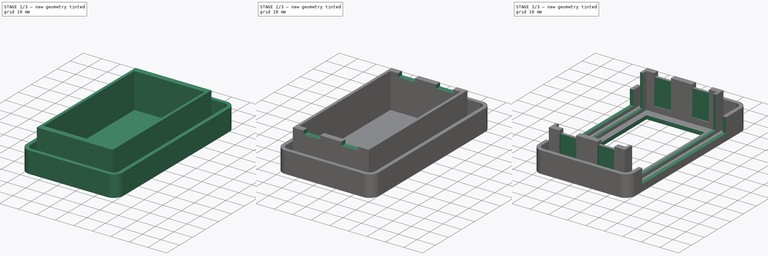
[diagram: build sequence overview — one tinted view per stage of 3, left to right]
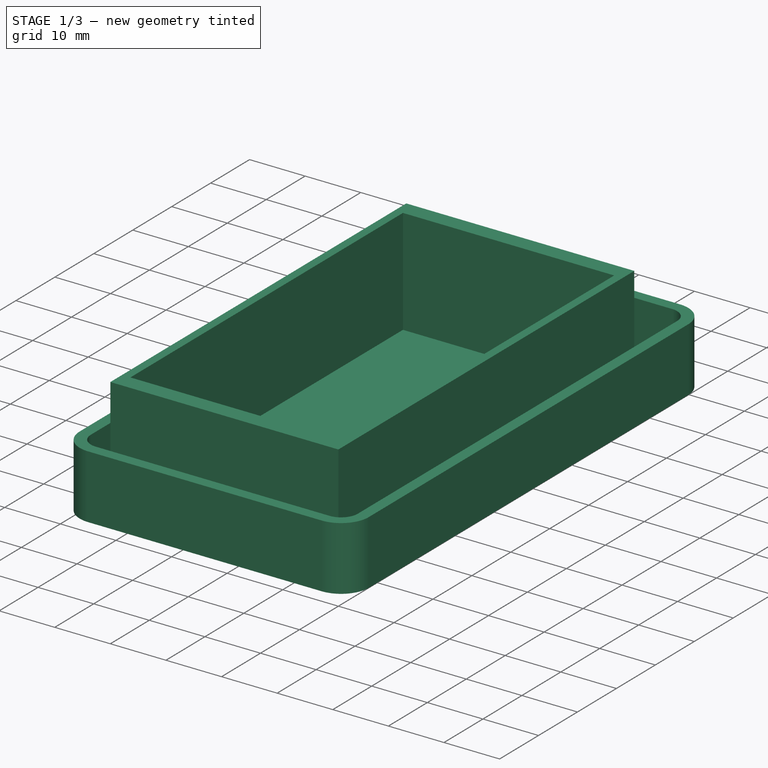
[diagram: stage 1 of 3 — iso view after this stage's code; geometry added in this stage tinted green]
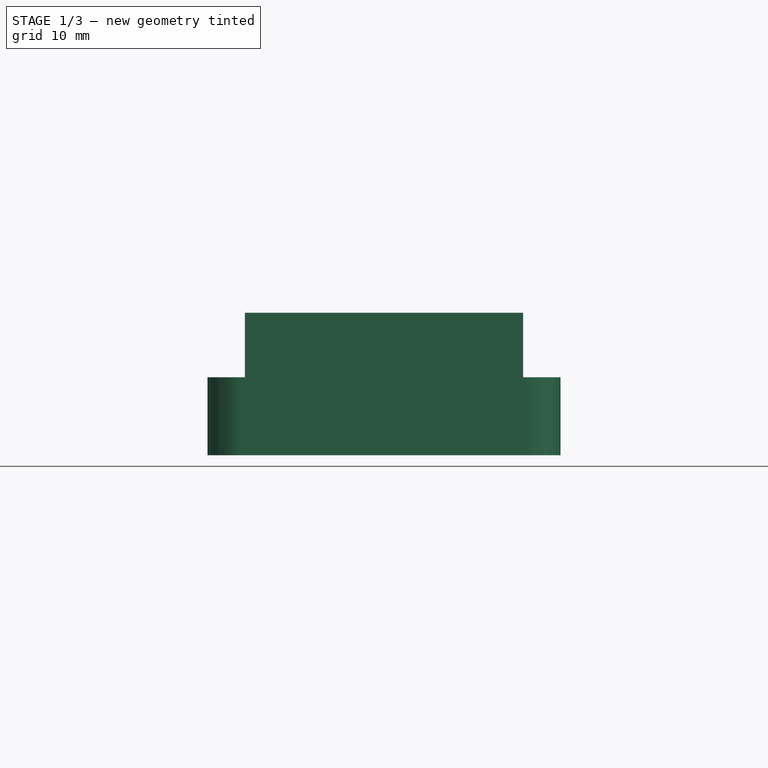
[diagram: stage 1 of 3 — front view after this stage's code; geometry added in this stage tinted green]
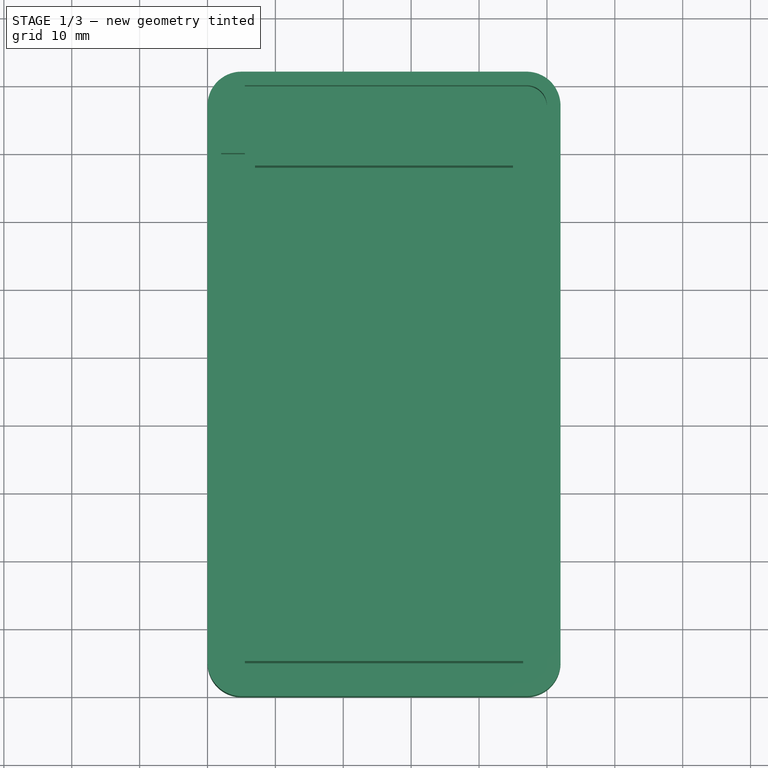
[diagram: stage 1 of 3 — top view after this stage's code; geometry added in this stage tinted green]
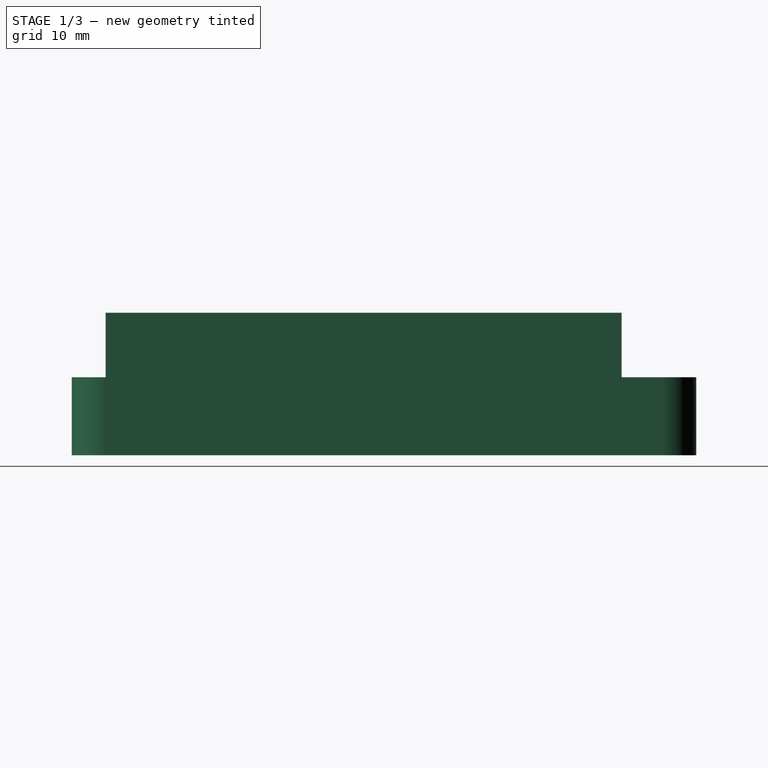
[diagram: stage 1 of 3 — right view after this stage's code; geometry added in this stage tinted green]
FCSTD DOCUMENT
Label: 18650USBCharger
objects: Sketcher::SketchObject×8, PartDesign::Pocket×6, PartDesign::Pad×2
note: 18 computed .brp shape members not serialized (recipe doc carries the construction recipe); baked Part::Feature solids carry a one-line shape summary decoded from their .brp

FEATURE [Sketcher::SketchObject] Sketch
  sketch-geometry (16):
    g0: LineSegment StartX=0 StartY=5 StartZ=0 EndX=0 EndY=87 EndZ=0
    g1: LineSegment [constr] StartX=0 StartY=87 StartZ=0 EndX=5 EndY=87 EndZ=0
    g2: LineSegment [constr] StartX=5 StartY=87 StartZ=0 EndX=5 EndY=92 EndZ=0
    g3: LineSegment StartX=5 StartY=92 StartZ=0 EndX=47 EndY=92 EndZ=0
    g4: LineSegment [constr] StartX=47 StartY=92 StartZ=0 EndX=47 EndY=87 EndZ=0
    g5: LineSegment [constr] StartX=47 StartY=87 StartZ=0 EndX=52 EndY=87 EndZ=0
    g6: LineSegment StartX=52 StartY=87 StartZ=0 EndX=52 EndY=5 EndZ=0
    g7: LineSegment [constr] StartX=52 StartY=5 StartZ=0 EndX=47 EndY=5 EndZ=0
    g8: LineSegment [constr] StartX=47 StartY=5 StartZ=0 EndX=47 EndY=0 EndZ=0
    g9: LineSegment StartX=47 StartY=0 StartZ=0 EndX=5 EndY=0 EndZ=0
    g10: LineSegment [constr] StartX=5 StartY=0 StartZ=0 EndX=5 EndY=5 EndZ=0
    g11: LineSegment [constr] StartX=5 StartY=5 StartZ=0 EndX=0 EndY=5 EndZ=0
    g12: ArcOfCircle CenterX=5 CenterY=87 CenterZ=0 NormalX=0 NormalY=0 NormalZ=1 Radius=5 StartAngle=1.5708 EndAngle=3.14159
    g13: ArcOfCircle CenterX=47 CenterY=87 CenterZ=0 NormalX=0 NormalY=0 NormalZ=1 Radius=5 StartAngle=0 EndAngle=1.5708
    g14: ArcOfCircle CenterX=5 CenterY=5 CenterZ=0 NormalX=0 NormalY=0 NormalZ=1 Radius=5 StartAngle=3.14159 EndAngle=4.71239
    g15: ArcOfCircle CenterX=47 CenterY=5 CenterZ=0 NormalX=0 NormalY=0 NormalZ=1 Radius=5 StartAngle=4.71239 EndAngle=6.28319
  constraints (44):
    c: Vertical(g0)
    c: Coincident(g0,g1)
    c: Horizontal(g1)
    c: Coincident(g1,g2)
    c: Vertical(g2)
    c: Coincident(g2,g3)
    c: Horizontal(g3)
    c: Coincident(g3,g4)
    c: Vertical(g4)
    c: Coincident(g4,g5)
    c: Horizontal(g5)
    c: Coincident(g5,g6)
    c: Vertical(g6)
    c: Coincident(g6,g7)
    c: Horizontal(g7)
    c: Coincident(g7,g8)
    c: Vertical(g8)
    c: Coincident(g8,g9)
    c: Horizontal(g9)
    c: Coincident(g9,g10)
    c: Vertical(g10)
    c: Coincident(g10,g11)
    c: Coincident(g11,g0)
    c: Horizontal(g11)
    c: Coincident(g12,g1)
    c: Coincident(g12,g0)
    c: Coincident(g12,g2)
    c: Coincident(g13,g4)
    c: Coincident(g13,g3)
    c: Coincident(g13,g5)
    c: Coincident(g14,g10)
    c: Coincident(g14,g9)
    c: Coincident(g14,g0)
    c: Coincident(g15,g7)
    c: Coincident(g15,g8)
    c: Coincident(g15,g6)
    c: Equal(g12,g14)
    c: Equal(g14,g15)
    c: Equal(g15,g13)
    c: Radius(g13) = 5
    c: DistanceX(g0) = 0
    c: DistanceY(g9) = 0
    c: DistanceY(g3,g8) = -92
    c: DistanceX(g0,g5) = 52
FEATURE [PartDesign::Pad] Pad
  Length = 11.5
  MirroredExtent = false
  Sketch = -> Sketch
FEATURE [Sketcher::SketchObject] Sketch001
  Placement = pos=(0,0,11.5) rot=(0,0,1;0rad)
  Support = -> Pad [Face10]
  sketch-geometry (15):
    g0: LineSegment StartX=2 StartY=5 StartZ=0 EndX=2 EndY=80 EndZ=0
    g1: LineSegment StartX=5.5 StartY=90 StartZ=0 EndX=47 EndY=90 EndZ=0
    g2: LineSegment [constr] StartX=47 StartY=90 StartZ=0 EndX=47 EndY=87 EndZ=0
    g3: LineSegment [constr] StartX=47 StartY=87 StartZ=0 EndX=50 EndY=87 EndZ=0
    g4: LineSegment StartX=50 StartY=87 StartZ=0 EndX=50 EndY=5 EndZ=0
    g5: LineSegment [constr] StartX=50 StartY=5 StartZ=0 EndX=47 EndY=5 EndZ=0
    g6: LineSegment [constr] StartX=47 StartY=5 StartZ=0 EndX=47 EndY=2 EndZ=0
    g7: LineSegment StartX=47 StartY=2 StartZ=0 EndX=5 EndY=2 EndZ=0
    g8: LineSegment [constr] StartX=5 StartY=2 StartZ=0 EndX=5 EndY=5 EndZ=0
    g9: LineSegment [constr] StartX=5 StartY=5 StartZ=0 EndX=2 EndY=5 EndZ=0
    g10: ArcOfCircle CenterX=47 CenterY=87 CenterZ=0 NormalX=0 NormalY=0 NormalZ=1 Radius=3 StartAngle=0 EndAngle=1.5708
    g11: ArcOfCircle CenterX=5 CenterY=5 CenterZ=0 NormalX=0 NormalY=0 NormalZ=1 Radius=3 StartAngle=3.14159 EndAngle=4.71239
    g12: ArcOfCircle CenterX=47 CenterY=5 CenterZ=0 NormalX=0 NormalY=0 NormalZ=1 Radius=3 StartAngle=4.71239 EndAngle=6.28319
    g13: LineSegment StartX=2 StartY=80 StartZ=0 EndX=5.5 EndY=80 EndZ=0
    g14: LineSegment StartX=5.5 StartY=80 StartZ=0 EndX=5.5 EndY=90 EndZ=0
  constraints (42):
    c: Vertical(g0)
    c: Horizontal(g1)
    c: Coincident(g1,g2)
    c: Vertical(g2)
    c: Coincident(g2,g3)
    c: Horizontal(g3)
    c: Coincident(g3,g4)
    c: Vertical(g4)
    c: Coincident(g4,g5)
    c: Horizontal(g5)
    c: Coincident(g5,g6)
    c: Vertical(g6)
    c: Coincident(g6,g7)
    c: Horizontal(g7)
    c: Coincident(g7,g8)
    c: Vertical(g8)
    c: Coincident(g8,g9)
    c: Coincident(g9,g0)
    c: Horizontal(g9)
    c: Coincident(g10,g2)
    c: Coincident(g10,g1)
    c: Coincident(g10,g3)
    c: Coincident(g11,g8)
    c: Coincident(g11,g7)
    c: Coincident(g11,g0)
    c: Coincident(g12,g5)
    c: Coincident(g12,g6)
    c: Coincident(g12,g4)
    c: Equal(g11,g12)
    c: Equal(g12,g10)
    c: Radius(g10) = 3
    c: DistanceX(g0) = 2
    c: DistanceY(g7) = 2
    c: DistanceY(g1,g6) = -88
    c: DistanceX(g0,g3) = 48
    c: Coincident(g13,g0)
    c: Horizontal(g13)
    c: Coincident(g13,g14)
    c: Coincident(g14,g1)
    c: Vertical(g14)
    c: DistanceX(g13) = 5.5
    c: DistanceY(g14) = 10
FEATURE [PartDesign::Pocket] Pocket
  Length = 9.5
  Sketch = -> Sketch001
  Type = 0
FEATURE [Sketcher::SketchObject] Sketch002
  Placement = pos=(0,0,2) rot=(0,0,1;0rad)
  Support = -> Pocket [Face20]
  sketch-geometry (13):
    g0: LineSegment StartX=7 StartY=78 StartZ=0 EndX=45 EndY=78 EndZ=0
    g1: LineSegment StartX=45 StartY=78 StartZ=0 EndX=45 EndY=8 EndZ=0
    g2: LineSegment StartX=7 StartY=8 StartZ=0 EndX=7 EndY=78 EndZ=0
    g3: LineSegment StartX=7 StartY=8 StartZ=0 EndX=26 EndY=8 EndZ=0
    g4: LineSegment StartX=26 StartY=8 StartZ=0 EndX=45 EndY=8 EndZ=0
    g5: LineSegment StartX=5.5 StartY=5 StartZ=0 EndX=26 EndY=5 EndZ=0
    g6: LineSegment StartX=26 StartY=5 StartZ=0 EndX=46.5 EndY=5 EndZ=0
    g7: LineSegment StartX=5.5 StartY=5 StartZ=0 EndX=5.5 EndY=81 EndZ=0
    g8: LineSegment StartX=5.5 StartY=81 StartZ=0 EndX=46.5 EndY=81 EndZ=0
    g9: LineSegment StartX=46.5 StartY=81 StartZ=0 EndX=46.5 EndY=5 EndZ=0
    g10: LineSegment [constr] StartX=26 StartY=5 StartZ=0 EndX=26 EndY=8 EndZ=0
    g11: LineSegment [constr] StartX=7 StartY=78 StartZ=0 EndX=5.5 EndY=78 EndZ=0
    g12: LineSegment [constr] StartX=45 StartY=78 StartZ=0 EndX=46.5 EndY=78 EndZ=0
  constraints (38):
    c: Coincident(g0,g1)
    c: Coincident(g2,g0)
    c: Horizontal(g0)
    c: Vertical(g1)
    c: Vertical(g2)
    c: DistanceY(g1) = -70
    c: Coincident(g3,g2)
    c: Horizontal(g3)
    c: Coincident(g3,g4)
    c: Coincident(g4,g1)
    c: Horizontal(g4)
    c: Equal(g4,g3)
    c: DistanceX(g3) = 26
    c: DistanceX(g2,g1) = 38
    c: DistanceY(g2) = 8
    c: Horizontal(g5)
    c: Coincident(g5,g6)
    c: Horizontal(g6)
    c: Coincident(g7,g5)
    c: Vertical(g7)
    c: Coincident(g7,g8)
    c: Horizontal(g8)
    c: Coincident(g8,g9)
    c: Coincident(g9,g6)
    c: Vertical(g9)
    c: Equal(g6,g5)
    c: DistanceY(g0,g7) = 3
    c: DistanceX(g0,g7) = -1.5
    c: Coincident(g10,g5)
    c: Coincident(g10,g3)
    c: Vertical(g10)
    c: Coincident(g11,g0)
    c: PointOnObject(g11,g7)
    c: Horizontal(g11)
    c: Coincident(g12,g0)
    c: PointOnObject(g12,g9)
    c: Horizontal(g12)
    c: DistanceY(g2,g5) = -3
FEATURE [PartDesign::Pad] Pad001
  Length = 19
  MirroredExtent = false
  Sketch = -> Sketch002
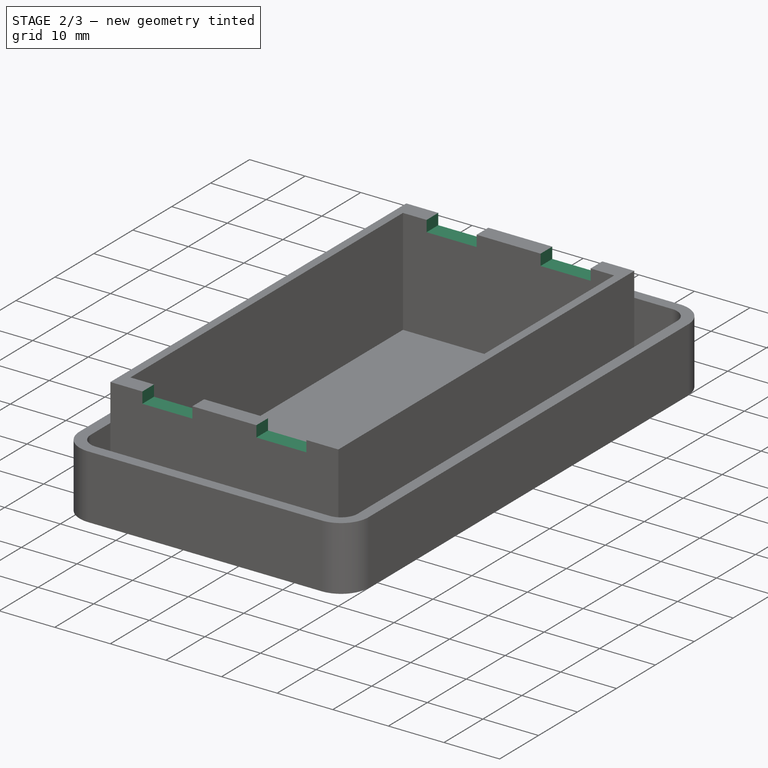
[diagram: stage 2 of 3 — iso view after this stage's code; geometry added in this stage tinted green]
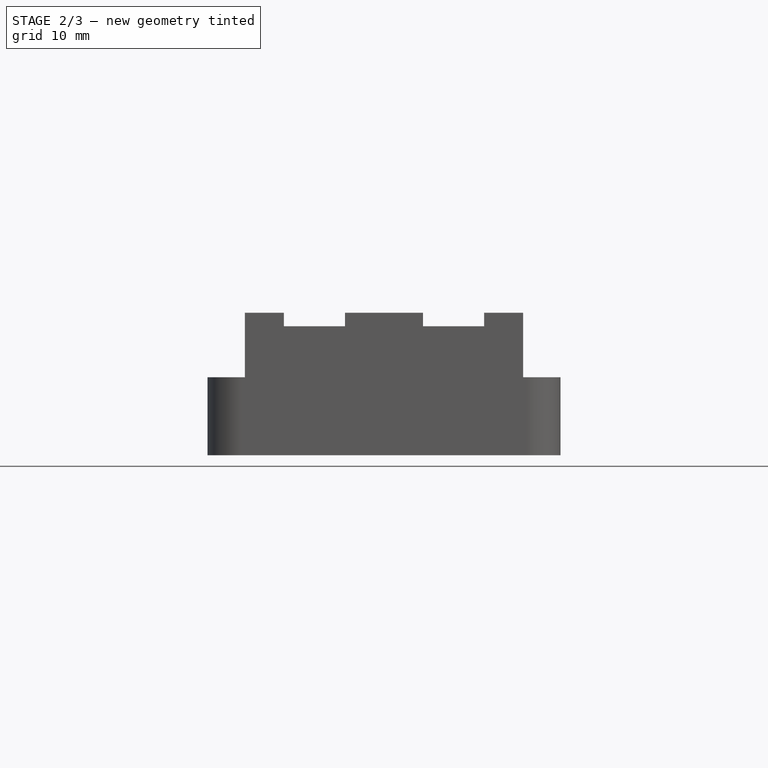
[diagram: stage 2 of 3 — front view after this stage's code; geometry added in this stage tinted green]
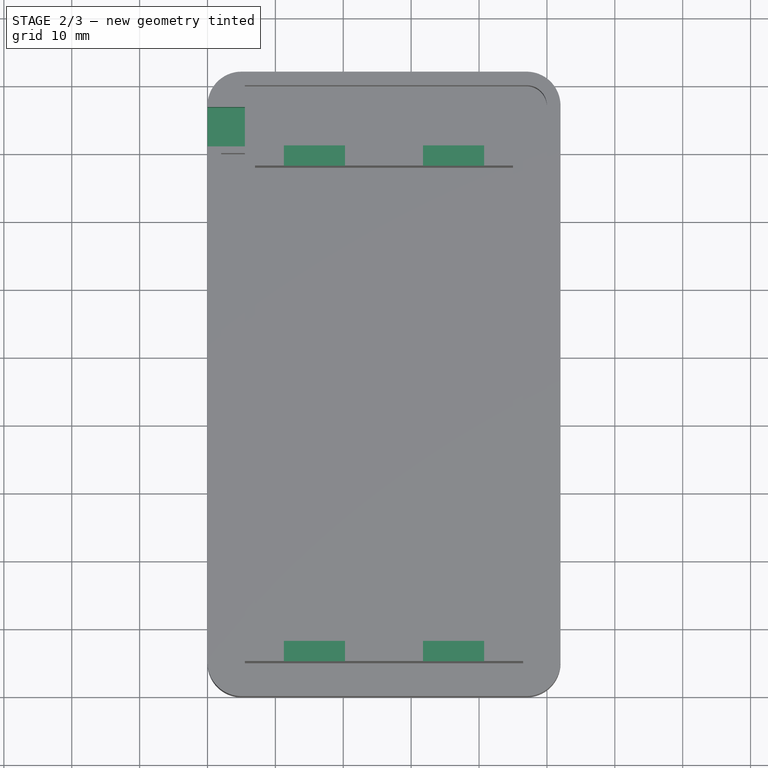
[diagram: stage 2 of 3 — top view after this stage's code; geometry added in this stage tinted green]
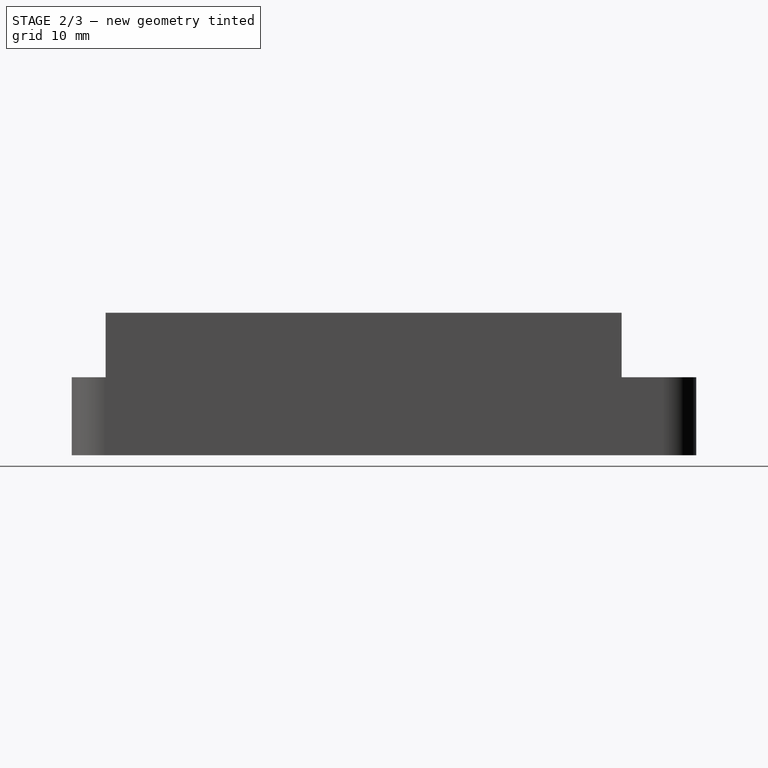
[diagram: stage 2 of 3 — right view after this stage's code; geometry added in this stage tinted green]
FEATURE [Sketcher::SketchObject] Sketch003
  Placement = pos=(0,0,0) rot=(0.57735,-0.57735,-0.57735;2.0944rad)
  Support = -> Pad001 [Face7]
  sketch-geometry (4):
    g0: LineSegment StartX=-81 StartY=4.8 StartZ=0 EndX=-86.8 EndY=4.8 EndZ=0
    g1: LineSegment StartX=-86.8 StartY=4.8 StartZ=0 EndX=-86.8 EndY=11.5 EndZ=0
    g2: LineSegment StartX=-86.8 StartY=11.5 StartZ=0 EndX=-81 EndY=11.5 EndZ=0
    g3: LineSegment StartX=-81 StartY=11.5 StartZ=0 EndX=-81 EndY=4.8 EndZ=0
  constraints (12):
    c: Coincident(g0,g1)
    c: Coincident(g1,g2)
    c: Coincident(g2,g3)
    c: Coincident(g3,g0)
    c: Horizontal(g0)
    c: Horizontal(g2)
    c: Vertical(g1)
    c: Vertical(g3)
    c: DistanceX(g0) = -5.8
    c: DistanceY(g3) = -6.7
    c: DistanceY(g2) = 11.5
    c: DistanceX(g0) = -81
FEATURE [PartDesign::Pocket] Pocket001
  Length = 6
  Sketch = -> Sketch003
  Type = 0
FEATURE [Sketcher::SketchObject] Sketch004
  Placement = pos=(0,0,21) rot=(0,0,1;0rad)
  Support = -> Pocket001 [Face26]
  sketch-geometry (13):
    g0: LineSegment StartX=11.25 StartY=81 StartZ=0 EndX=20.25 EndY=81 EndZ=0
    g1: LineSegment StartX=20.25 StartY=81 StartZ=0 EndX=20.25 EndY=5 EndZ=0
    g2: LineSegment StartX=20.25 StartY=5 StartZ=0 EndX=11.25 EndY=5 EndZ=0
    g3: LineSegment StartX=11.25 StartY=5 StartZ=0 EndX=11.25 EndY=81 EndZ=0
    g4: LineSegment StartX=31.75 StartY=81 StartZ=0 EndX=40.75 EndY=81 EndZ=0
    g5: LineSegment StartX=40.75 StartY=81 StartZ=0 EndX=40.75 EndY=5 EndZ=0
    g6: LineSegment StartX=40.75 StartY=5 StartZ=0 EndX=31.75 EndY=5 EndZ=0
    g7: LineSegment StartX=31.75 StartY=5 StartZ=0 EndX=31.75 EndY=81 EndZ=0
    g8: LineSegment [constr] StartX=20.25 StartY=81 StartZ=0 EndX=31.75 EndY=81 EndZ=0
    g9: LineSegment [constr] StartX=20.25 StartY=5 StartZ=0 EndX=26 EndY=5 EndZ=0
    g10: LineSegment [constr] StartX=26 StartY=5 StartZ=0 EndX=31.75 EndY=5 EndZ=0
    g11: LineSegment [constr] StartX=11.25 StartY=5 StartZ=0 EndX=5.5 EndY=5 EndZ=0
    g12: LineSegment [constr] StartX=40.75 StartY=5 StartZ=0 EndX=46.5 EndY=5 EndZ=0
  constraints (37):
    c: Coincident(g0,g1)
    c: Coincident(g1,g2)
    c: Coincident(g2,g3)
    c: Coincident(g3,g0)
    c: Horizontal(g0)
    c: Horizontal(g2)
    c: Vertical(g1)
    c: Vertical(g3)
    c: Coincident(g4,g5)
    c: Coincident(g5,g6)
    c: Coincident(g6,g7)
    c: Coincident(g7,g4)
    c: Horizontal(g4)
    c: Horizontal(g6)
    c: Vertical(g5)
    c: Vertical(g7)
    c: Coincident(g8,g0)
    c: Coincident(g8,g4)
    c: Horizontal(g8)
    c: Equal(g0,g4)
    c: DistanceY(g5) = -76
    c: Coincident(g9,g1)
    c: Horizontal(g9)
    c: Coincident(g9,g10)
    c: Coincident(g10,g6)
    c: Horizontal(g10)
    c: Equal(g10,g9)
    c: DistanceX(g9) = 26
    c: Coincident(g11,g2)
    c: Horizontal(g11)
    c: Coincident(g12,g5)
    c: Horizontal(g12)
    c: Equal(g11,g12)
    c: Equal(g10,g12)
    c: DistanceX(g11,g12) = 41
    c: DistanceY(g11) = 5
    c: DistanceX(g2) = -9
FEATURE [PartDesign::Pocket] Pocket002
  Length = 2
  Sketch = -> Sketch004
  Type = 0
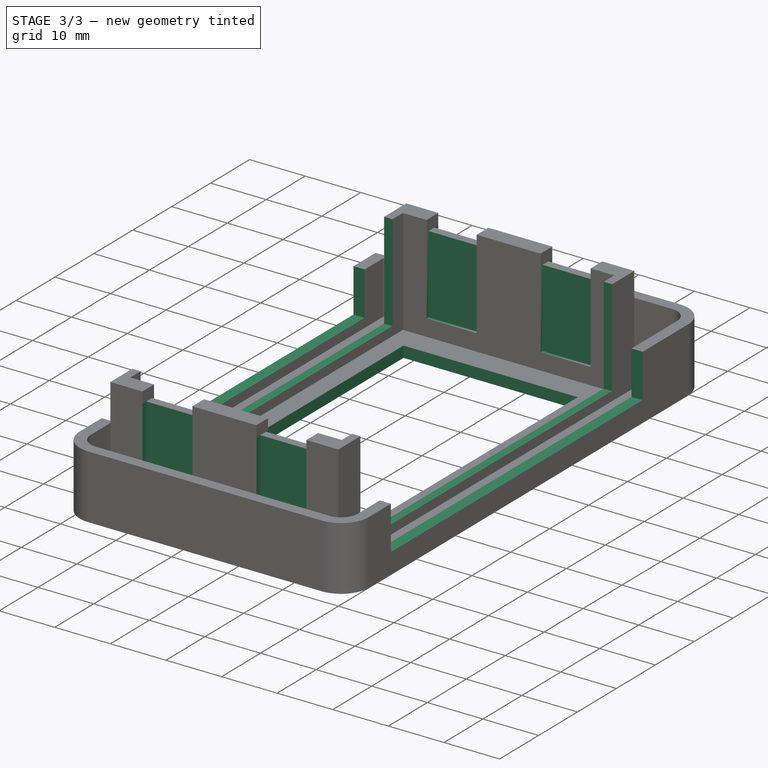
[diagram: stage 3 of 3 — iso view after this stage's code; geometry added in this stage tinted green]
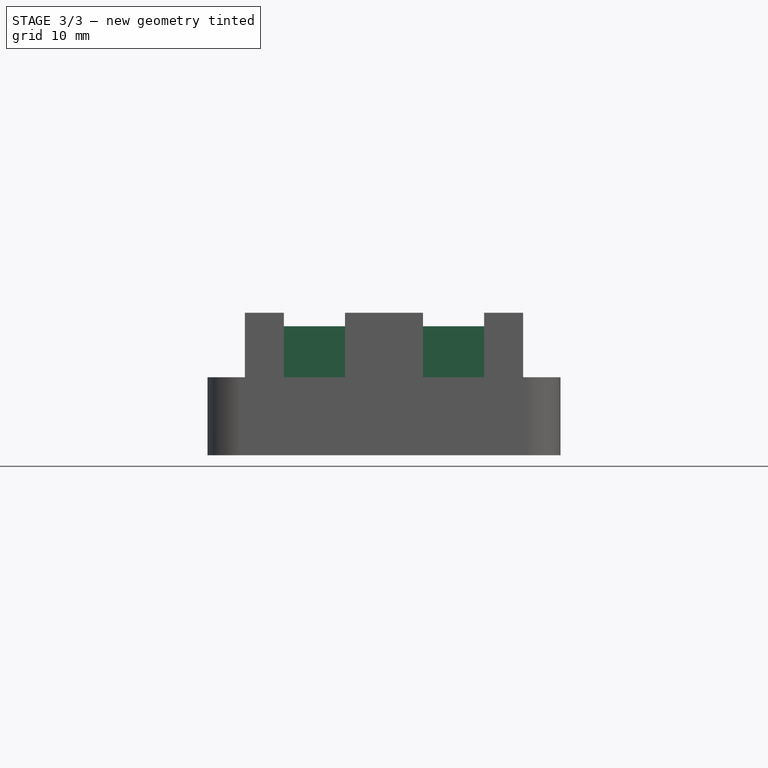
[diagram: stage 3 of 3 — front view after this stage's code; geometry added in this stage tinted green]
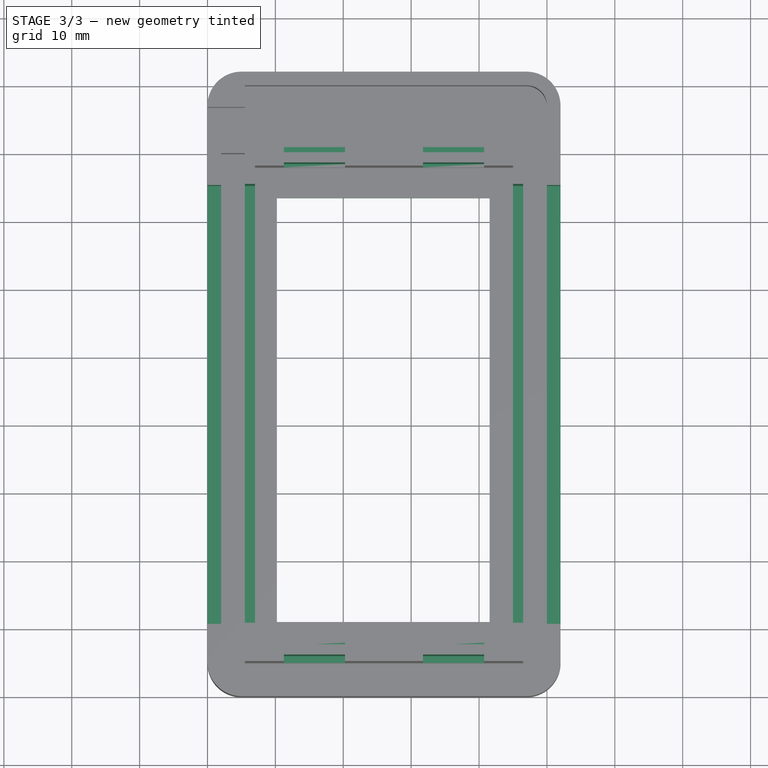
[diagram: stage 3 of 3 — top view after this stage's code; geometry added in this stage tinted green]
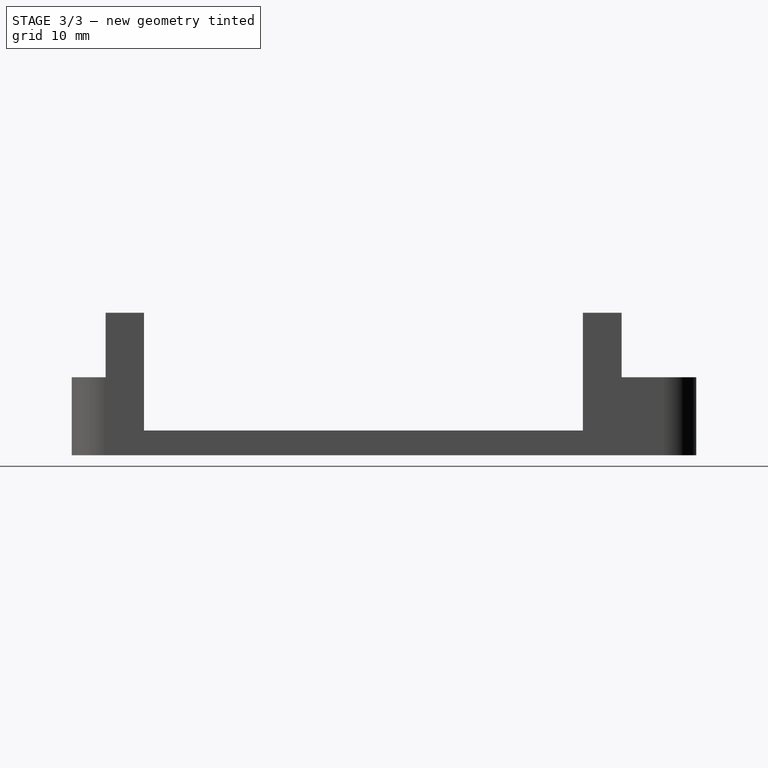
[diagram: stage 3 of 3 — right view after this stage's code; geometry added in this stage tinted green]
FEATURE [Sketcher::SketchObject] Sketch005
  Placement = pos=(0,0,19) rot=(0,0,1;0rad)
  Support = -> Pocket002 [Face41]
  sketch-geometry (41):
    g0: LineSegment StartX=11.25 StartY=78.5 StartZ=0 EndX=20.25 EndY=78.5 EndZ=0
    g1: LineSegment StartX=20.25 StartY=78.5 StartZ=0 EndX=20.25 EndY=7.5 EndZ=0
    g2: LineSegment StartX=20.25 StartY=7.5 StartZ=0 EndX=11.25 EndY=7.5 EndZ=0
    g3: LineSegment StartX=11.25 StartY=7.5 StartZ=0 EndX=11.25 EndY=78.5 EndZ=0
    g4: LineSegment StartX=31.75 StartY=78.5 StartZ=0 EndX=40.75 EndY=78.5 EndZ=0
    g5: LineSegment StartX=40.75 StartY=78.5 StartZ=0 EndX=40.75 EndY=7.5 EndZ=0
    g6: LineSegment StartX=40.75 StartY=7.5 StartZ=0 EndX=31.75 EndY=7.5 EndZ=0
    g7: LineSegment StartX=31.75 StartY=7.5 StartZ=0 EndX=31.75 EndY=78.5 EndZ=0
    g8: LineSegment StartX=11.25 StartY=80 StartZ=0 EndX=20.25 EndY=80 EndZ=0
    g9: LineSegment StartX=20.25 StartY=80 StartZ=0 EndX=20.25 EndY=81 EndZ=0
    g10: LineSegment StartX=20.25 StartY=81 StartZ=0 EndX=11.25 EndY=81 EndZ=0
    g11: LineSegment StartX=11.25 StartY=81 StartZ=0 EndX=11.25 EndY=80 EndZ=0
    g12: LineSegment StartX=31.75 StartY=80 StartZ=0 EndX=40.75 EndY=80 EndZ=0
    g13: LineSegment StartX=40.75 StartY=80 StartZ=0 EndX=40.75 EndY=81 EndZ=0
    g14: LineSegment StartX=40.75 StartY=81 StartZ=0 EndX=31.75 EndY=81 EndZ=0
    g15: LineSegment StartX=31.75 StartY=81 StartZ=0 EndX=31.75 EndY=80 EndZ=0
    g16: LineSegment StartX=11.25 StartY=6 StartZ=0 EndX=20.25 EndY=6 EndZ=0
    g17: LineSegment StartX=20.25 StartY=6 StartZ=0 EndX=20.25 EndY=5 EndZ=0
    g18: LineSegment StartX=20.25 StartY=5 StartZ=0 EndX=11.25 EndY=5 EndZ=0
    g19: LineSegment StartX=11.25 StartY=5 StartZ=0 EndX=11.25 EndY=6 EndZ=0
    g20: LineSegment StartX=31.75 StartY=6 StartZ=0 EndX=40.75 EndY=6 EndZ=0
    g21: LineSegment StartX=40.75 StartY=6 StartZ=0 EndX=40.75 EndY=5 EndZ=0
    g22: LineSegment StartX=40.75 StartY=5 StartZ=0 EndX=31.75 EndY=5 EndZ=0
    g23: LineSegment StartX=31.75 StartY=5 StartZ=0 EndX=31.75 EndY=6 EndZ=0
    g24: LineSegment [constr] StartX=20.25 StartY=80 StartZ=0 EndX=20.25 EndY=78.5 EndZ=0
    g25: LineSegment [constr] StartX=11.25 StartY=80 StartZ=0 EndX=11.25 EndY=78.5 EndZ=0
    g26: LineSegment [constr] StartX=11.25 StartY=6 StartZ=0 EndX=11.25 EndY=7.5 EndZ=0
    g27: LineSegment [constr] StartX=20.25 StartY=6 StartZ=0 EndX=20.25 EndY=7.5 EndZ=0
    g28: LineSegment [constr] StartX=31.75 StartY=7.5 StartZ=0 EndX=31.75 EndY=6 EndZ=0
    g29: LineSegment [constr] StartX=40.75 StartY=6 StartZ=0 EndX=40.75 EndY=7.5 EndZ=0
    g30: LineSegment [constr] StartX=20.25 StartY=7.5 StartZ=0 EndX=31.75 EndY=7.5 EndZ=0
    g31: LineSegment [constr] StartX=31.75 StartY=6 StartZ=0 EndX=20.25 EndY=6 EndZ=0
    g32: LineSegment [constr] StartX=40.75 StartY=78.5 StartZ=0 EndX=40.75 EndY=80 EndZ=0
    g33: LineSegment [constr] StartX=31.75 StartY=80 StartZ=0 EndX=31.75 EndY=78.5 EndZ=0
    g34: LineSegment [constr] StartX=20.25 StartY=81 StartZ=0 EndX=31.75 EndY=81 EndZ=0
    g35: LineSegment [constr] StartX=20.25 StartY=80 StartZ=0 EndX=31.75 EndY=80 EndZ=0
    g36: LineSegment [constr] StartX=20.25 StartY=78.5 StartZ=0 EndX=31.75 EndY=78.5 EndZ=0
    g37: LineSegment [constr] StartX=20.25 StartY=5 StartZ=0 EndX=26 EndY=5 EndZ=0
    g38: LineSegment [constr] StartX=26 StartY=5 StartZ=0 EndX=31.75 EndY=5 EndZ=0
    g39: LineSegment [constr] StartX=11.25 StartY=5 StartZ=0 EndX=5.5 EndY=5 EndZ=0
    g40: LineSegment [constr] StartX=40.75 StartY=5 StartZ=0 EndX=46.5 EndY=5 EndZ=0
  constraints (109):
    c: Coincident(g0,g1)
    c: Coincident(g1,g2)
    c: Coincident(g2,g3)
    c: Coincident(g3,g0)
    c: Horizontal(g0)
    c: Horizontal(g2)
    c: Vertical(g1)
    c: Vertical(g3)
    c: Coincident(g4,g5)
    c: Coincident(g5,g6)
    c: Coincident(g6,g7)
    c: Coincident(g7,g4)
    c: Horizontal(g4)
    c: Horizontal(g6)
    c: Vertical(g5)
    c: Vertical(g7)
    c: Coincident(g8,g9)
    c: Coincident(g9,g10)
    c: Coincident(g10,g11)
    c: Coincident(g11,g8)
    c: Horizontal(g8)
    c: Horizontal(g10)
    c: Vertical(g9)
    c: Vertical(g11)
    c: Coincident(g12,g13)
    c: Coincident(g13,g14)
    c: Coincident(g14,g15)
    c: Coincident(g15,g12)
    c: Horizontal(g12)
    c: Horizontal(g14)
    c: Vertical(g13)
    c: Vertical(g15)
    c: Coincident(g16,g17)
    c: Coincident(g17,g18)
    c: Coincident(g18,g19)
    c: Coincident(g19,g16)
    c: Horizontal(g16)
    c: Horizontal(g18)
    c: Vertical(g17)
    c: Vertical(g19)
    c: Coincident(g20,g21)
    c: Coincident(g21,g22)
    c: Coincident(g22,g23)
    c: Coincident(g23,g20)
    c: Horizontal(g20)
    c: Horizontal(g22)
    c: Vertical(g21)
    c: Vertical(g23)
    c: Coincident(g24,g8)
    c: Coincident(g24,g0)
    c: Vertical(g24)
    c: Coincident(g25,g8)
    c: Coincident(g25,g0)
    c: Vertical(g25)
    c: Coincident(g26,g2)
    c: Coincident(g16,g26)
    c: Vertical(g26)
    c: Coincident(g27,g16)
    c: Coincident(g27,g1)
    c: Vertical(g27)
    c: Coincident(g28,g6)
    c: Coincident(g28,g20)
    c: Vertical(g28)
    c: Coincident(g29,g20)
    c: Coincident(g29,g5)
    c: Vertical(g29)
    c: Coincident(g30,g1)
    c: Coincident(g30,g6)
    c: Coincident(g31,g16)
    c: Coincident(g31,g20)
    c: Horizontal(g31)
    c: Horizontal(g30)
    c: Coincident(g32,g4)
    c: Coincident(g32,g12)
    c: Coincident(g33,g12)
    c: Coincident(g33,g4)
    c: Vertical(g33)
    c: Vertical(g32)
    c: Coincident(g34,g9)
    c: Coincident(g34,g14)
    c: Coincident(g35,g8)
    c: Coincident(g35,g12)
    c: Horizontal(g35)
    c: Coincident(g36,g0)
    c: Coincident(g36,g4)
    c: Horizontal(g36)
    c: Horizontal(g34)
    c: Equal(g25,g26)
    c: Equal(g11,g19)
    c: Equal(g10,g14)
    c: DistanceX(g18) = -9
    c: Coincident(g37,g17)
    c: Horizontal(g37)
    c: Coincident(g37,g38)
    c: Coincident(g38,g22)
    c: Horizontal(g38)
    c: Equal(g38,g37)
    c: DistanceY(g21) = -1
    c: DistanceX(g37) = 26
    c: Coincident(g39,g18)
    c: Horizontal(g39)
    c: Coincident(g40,g21)
    c: Horizontal(g40)
    c: Equal(g39,g37)
    c: Equal(g37,g40)
    c: DistanceX(g40,g39) = -41
    c: DistanceY(g39) = 5
    c: DistanceY(g13,g21) = -76
    c: DistanceY(g5) = -71
FEATURE [PartDesign::Pocket] Pocket003
  Length = 14
  Sketch = -> Sketch005
  Type = 0
FEATURE [Sketcher::SketchObject] Sketch006
  Placement = pos=(0,0,2) rot=(0,0,1;0rad)
  Support = -> Pocket003 [Face81]
  sketch-geometry (4):
    g0: LineSegment StartX=10.2215 StartY=73.549 StartZ=0 EndX=41.5609 EndY=73.549 EndZ=0
    g1: LineSegment StartX=41.5609 StartY=73.549 StartZ=0 EndX=41.5609 EndY=11.0786 EndZ=0
    g2: LineSegment StartX=41.5609 StartY=11.0786 StartZ=0 EndX=10.2215 EndY=11.0786 EndZ=0
    g3: LineSegment StartX=10.2215 StartY=11.0786 StartZ=0 EndX=10.2215 EndY=73.549 EndZ=0
  constraints (12):
    c: Coincident(g0,g1)
    c: Coincident(g1,g2)
    c: Coincident(g2,g3)
    c: Coincident(g3,g0)
    c: Horizontal(g0)
    c: Horizontal(g2)
    c: Vertical(g1)
    c: Vertical(g3)
    c: DistanceX(g0) = 31.3393
    c: DistanceY(g3) = 62.4704
    c: DistanceX(g2) = 10.2215
    c: DistanceY(g2) = 11.0786
FEATURE [PartDesign::Pocket] Pocket004  label="ProtoPocket004"
  Length = 5
  Sketch = -> Sketch006
  Type = 0
FEATURE [Sketcher::SketchObject] Sketch007
  Placement = pos=(0,0,0) rot=(0.57735,-0.57735,-0.57735;2.0944rad)
  Support = -> Pocket004 [Face7]
  sketch-geometry (4):
    g0: LineSegment StartX=-75.3031 StartY=3.64467 StartZ=0 EndX=-10.6462 EndY=3.64467 EndZ=0
    g1: LineSegment StartX=-10.6462 StartY=3.64467 StartZ=0 EndX=-10.6462 EndY=22.2817 EndZ=0
    g2: LineSegment StartX=-10.6462 StartY=22.2817 StartZ=0 EndX=-75.3031 EndY=22.2817 EndZ=0
    g3: LineSegment StartX=-75.3031 StartY=22.2817 StartZ=0 EndX=-75.3031 EndY=3.64467 EndZ=0
  constraints (12):
    c: Coincident(g0,g1)
    c: Coincident(g1,g2)
    c: Coincident(g2,g3)
    c: Coincident(g3,g0)
    c: Horizontal(g0)
    c: Horizontal(g2)
    c: Vertical(g1)
    c: Vertical(g3)
    c: DistanceY(g3) = -18.637
    c: DistanceX(g2) = -64.6568
    c: DistanceX(g0) = -75.3031
    c: DistanceY(g0) = 3.64467
FEATURE [PartDesign::Pocket] Pocket005  label="ProtoPocket005"
  Length = 75
  Sketch = -> Sketch007
  Type = 0
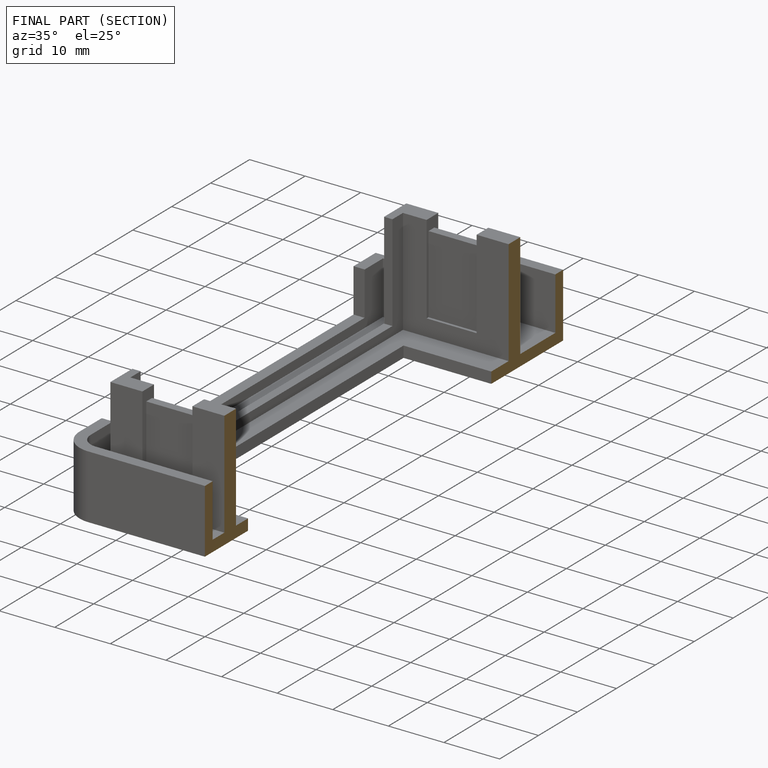
[diagram: finished part — half-section view (interior)]
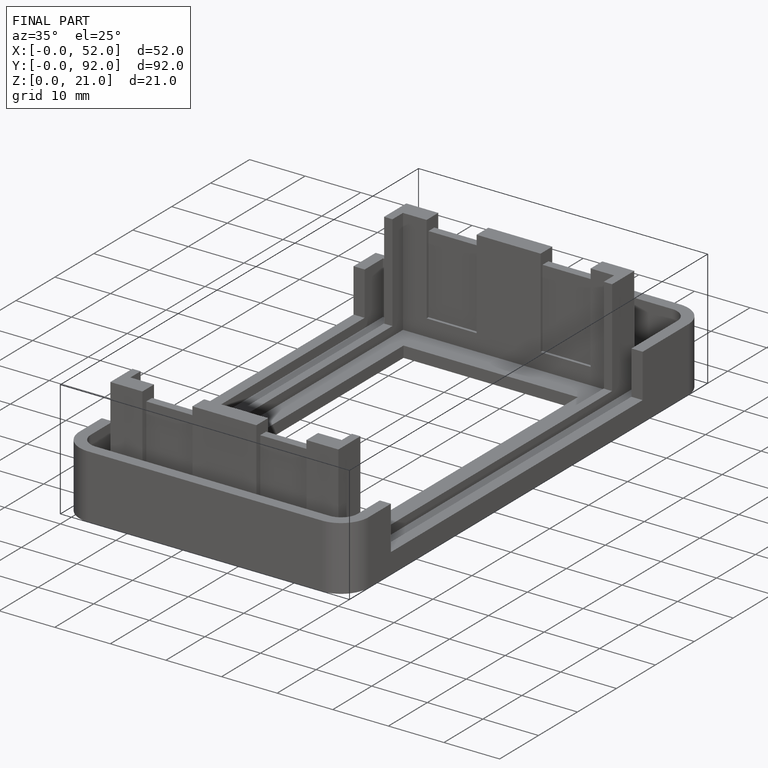
[diagram: finished part — iso view with bounding-box wireframe]
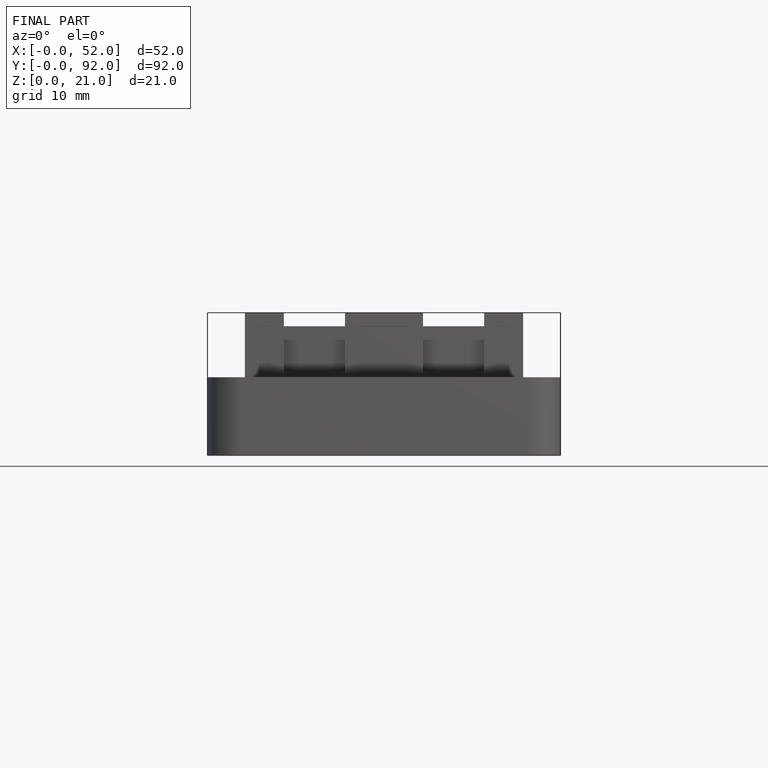
[diagram: finished part — front view with bounding-box wireframe]
